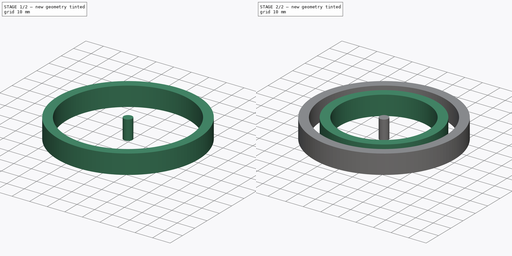
[diagram: build sequence overview — one tinted view per stage of 2, left to right]
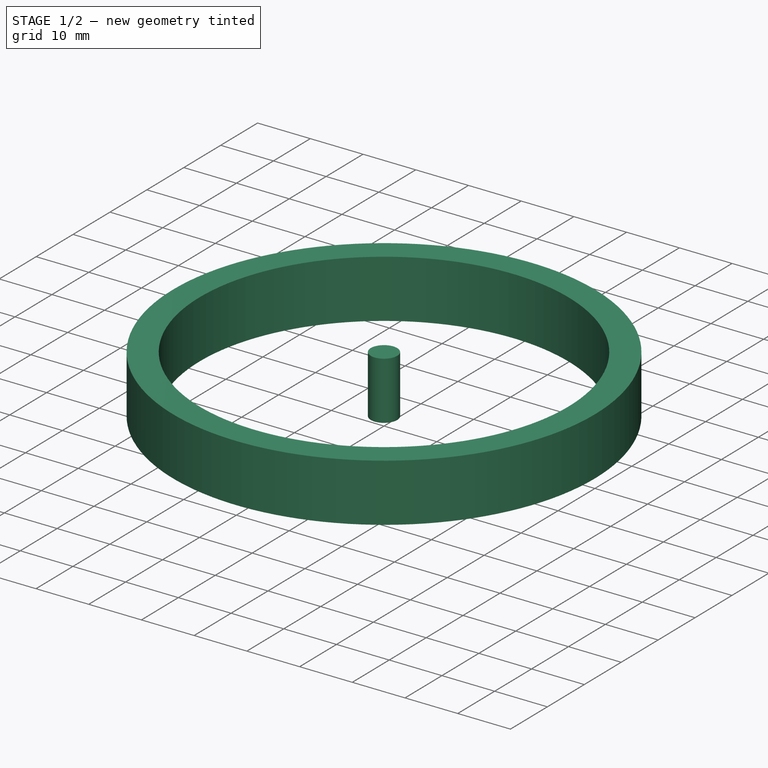
[diagram: stage 1 of 2 — iso view after this stage's code; geometry added in this stage tinted green]
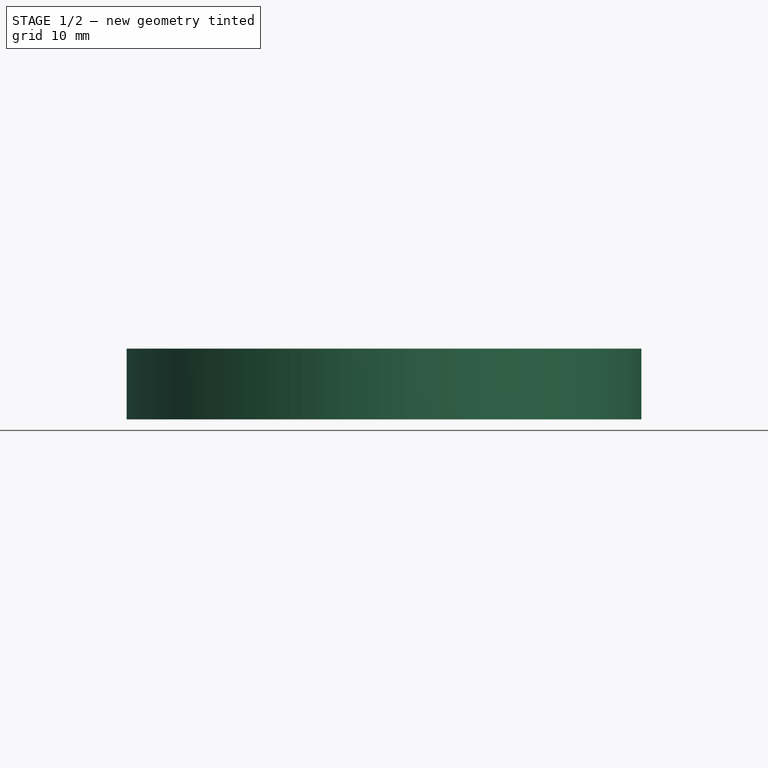
[diagram: stage 1 of 2 — front view after this stage's code; geometry added in this stage tinted green]
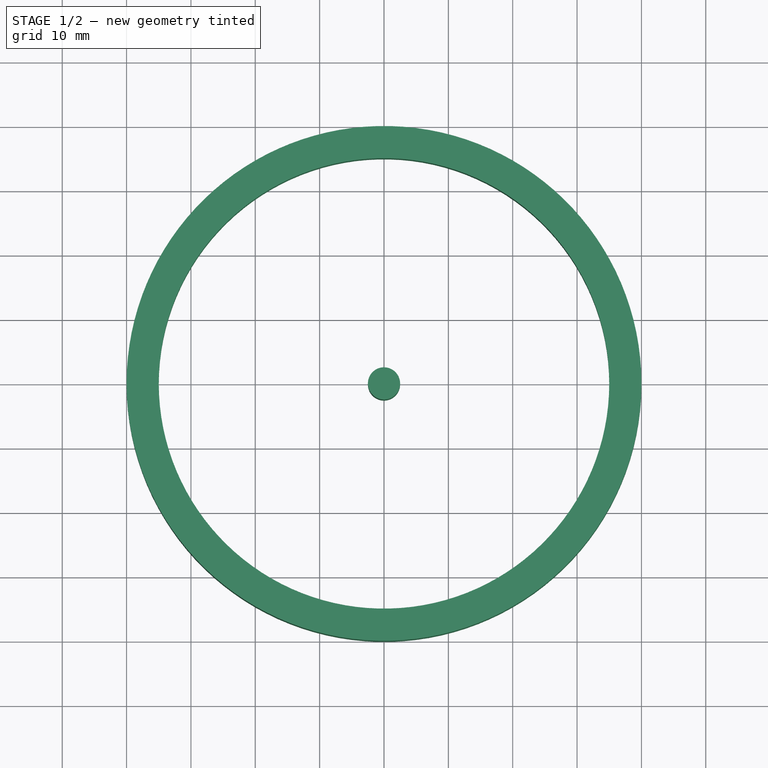
[diagram: stage 1 of 2 — top view after this stage's code; geometry added in this stage tinted green]
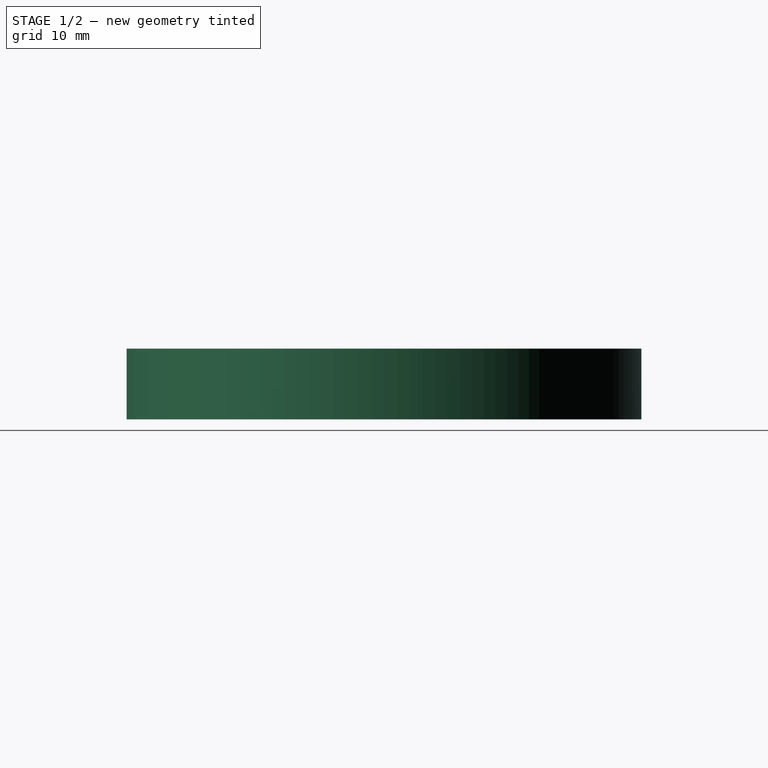
[diagram: stage 1 of 2 — right view after this stage's code; geometry added in this stage tinted green]
FCSTD DOCUMENT  (FreeCAD 0.19R24276 (Git))
Label: Assambly_bearing_50x80x11
License: All rights reserved
LicenseURL: http://en.wikipedia.org/wiki/All_rights_reserved
objects: PartDesign::CoordinateSystem×16, App::Link×14, Sketcher::SketchObject×4, App::DocumentObjectGroup×3, PartDesign::Pad×3, PartDesign::Body×3, App::FeaturePython×1, App::Part×1
note: 29 computed .brp shape members not serialized (recipe doc carries the construction recipe); baked Part::Feature solids carry a one-line shape summary decoded from their .brp

FEATURE [Sketcher::SketchObject] Sketch003
  FullyConstrained = true
  MapMode = 5
  Support = -> [XY_Plane004]
  sketch-geometry (1):
    g0: Circle CenterX=0 CenterY=0 CenterZ=0 NormalX=0 NormalY=0 NormalZ=1 AngleXU=0 Radius=2.5
  constraints (2):
    c: Diameter(g0) = 5
    c: Coincident(g0,g-1)
FEATURE [PartDesign::Pad] Pad002
  Direction = (1,1,1)
  Length = 11
  Length2 = 100
  Profile = -> Sketch003
  Type = 0
FEATURE [PartDesign::CoordinateSystem] LCS_Ring_in
  AttacherType = Attacher::AttachEngine3D
  MapMode = 11
  Placement = pos=(0,0,11) rot=(0,0,1;1.5708rad)
  Support = -> [Pad001]
FEATURE [PartDesign::Body] Body001  label="Body_ring_in"
  Group = -> [Sketch002,Pad001,LCS_Ring_in]
  Origin = -> Origin002
  Tip = -> Pad001
FEATURE [PartDesign::CoordinateSystem] LCS_Roller
  AttacherType = Attacher::AttachEngine3D
  MapMode = 11
  Placement = pos=(0,0,11) rot=(0,0,1;1.5708rad)
  Support = -> [Pad002]
FEATURE [PartDesign::Body] Body002  label="Body_roller"
  Group = -> [Sketch003,Pad002,LCS_Roller]
  Origin = -> Origin003
  Tip = -> Pad002
FEATURE [App::Link] Body_ring_in  label="Body_ring_in001"
  AttachedBy = #LCS_Ring_in
  AttachedTo = Parent Assembly#LCS_Origin
  LinkPlacement = pos=(0,0,-11) rot=(0,0,-1;1.5708rad)
  LinkedObject = -> Body001
  Placement = pos=(0,0,-11) rot=(0,0,-1;1.5708rad)
  SolverId = Placement::ExpressionEngine
  expr: Placement = LCS_Origin.Placement * AttachmentOffset * LCS_Ring_in.Placement ^ -1
FEATURE [PartDesign::CoordinateSystem] LCS_MS_1
  AttacherType = Attacher::AttachEngine3D
  MapMode = 11
  Placement = pos=(0.100138,32.4998,0) rot=(0,0,1;1.5708rad)
  Support = -> [Sketch]
FEATURE [PartDesign::CoordinateSystem] LCS_MS_2
  AttacherType = Attacher::AttachEngine3D
  MapMode = 11
  Placement = pos=(16.25,28.1458,0) rot=(0,0,1;1.5708rad)
  Support = -> [Sketch]
FEATURE [PartDesign::CoordinateSystem] LCS_MS_3
  AttacherType = Attacher::AttachEngine3D
  MapMode = 11
  Placement = pos=(28.1458,16.25,0) rot=(0,0,1;1.5708rad)
  Support = -> [Sketch]
FEATURE [PartDesign::CoordinateSystem] LCS_MS_4
  AttacherType = Attacher::AttachEngine3D
  MapMode = 11
  Placement = pos=(32.5,0,0) rot=(0,0,1;1.5708rad)
  Support = -> [Sketch]
FEATURE [PartDesign::CoordinateSystem] LCS_MS_5
  AttacherType = Attacher::AttachEngine3D
  MapMode = 11
  Placement = pos=(28.1458,-16.25,0) rot=(0,0,1;1.5708rad)
  Support = -> [Sketch]
FEATURE [PartDesign::CoordinateSystem] LCS_MS_6
  AttacherType = Attacher::AttachEngine3D
  MapMode = 11
  Placement = pos=(16.25,-28.1458,0) rot=(0,0,1;1.5708rad)
  Support = -> [Sketch]
FEATURE [PartDesign::CoordinateSystem] LCS_MS_7
  AttacherType = Attacher::AttachEngine3D
  MapMode = 11
  Placement = pos=(-0.104366,-32.4998,0) rot=(0,0,1;1.5708rad)
  Support = -> [Sketch]
FEATURE [PartDesign::CoordinateSystem] LCS_8  label="LCS_MS_8"
  AttacherType = Attacher::AttachEngine3D
  MapMode = 11
  Placement = pos=(-16.25,-28.1458,0) rot=(0,0,1;1.5708rad)
  Support = -> [Sketch]
FEATURE [PartDesign::CoordinateSystem] LCS_MS_9
  AttacherType = Attacher::AttachEngine3D
  MapMode = 11
  Placement = pos=(-28.1458,-16.25,0) rot=(0,0,1;1.5708rad)
  Support = -> [Sketch]
FEATURE [PartDesign::CoordinateSystem] LCS_MS_10
  AttacherType = Attacher::AttachEngine3D
  MapMode = 11
  Placement = pos=(-32.5,-6e-16,0) rot=(0,0,1;1.5708rad)
  Support = -> [Sketch]
FEATURE [PartDesign::CoordinateSystem] LCS_MS_11
  AttacherType = Attacher::AttachEngine3D
  MapMode = 11
  Placement = pos=(-28.1458,16.25,0) rot=(0,0,1;1.5708rad)
  Support = -> [Sketch]
FEATURE [PartDesign::CoordinateSystem] LCS_MS_12
  AttacherType = Attacher::AttachEngine3D
  MapMode = 11
  Placement = pos=(-16.25,28.1458,0) rot=(0,0,1;1.5708rad)
  Support = -> [Sketch]
FEATURE [App::Link] Body_roller001  label="Body_roller002"
  AttachedBy = #LCS_Roller
  AttachedTo = Parent Assembly#LCS_MS_1
  LinkPlacement = pos=(0.100138,32.4998,-11) rot=(0,0,1;0rad)
  LinkedObject = -> Body002
  Placement = pos=(0.100138,32.4998,-11) rot=(0,0,1;0rad)
  SolverId = Placement::ExpressionEngine
  expr: Placement = LCS_MS_1.Placement * AttachmentOffset * LCS_Roller.Placement ^ -1
FEATURE [App::Link] Body_roller002  label="Body_roller003"
  AttachedBy = #LCS_Roller
  AttachedTo = Parent Assembly#LCS_MS_2
  LinkPlacement = pos=(16.25,28.1458,-11) rot=(0,0,1;0rad)
  LinkedObject = -> Body002
  Placement = pos=(16.25,28.1458,-11) rot=(0,0,1;0rad)
  SolverId = Placement::ExpressionEngine
  expr: Placement = LCS_MS_2.Placement * AttachmentOffset * LCS_Roller.Placement ^ -1
FEATURE [App::Link] Body_roller003  label="Body_roller004"
  AttachedBy = #LCS_Roller
  AttachedTo = Parent Assembly#LCS_MS_3
  LinkPlacement = pos=(28.1458,16.25,-11) rot=(0,0,1;0rad)
  LinkedObject = -> Body002
  Placement = pos=(28.1458,16.25,-11) rot=(0,0,1;0rad)
  SolverId = Placement::ExpressionEngine
  expr: Placement = LCS_MS_3.Placement * AttachmentOffset * LCS_Roller.Placement ^ -1
FEATURE [App::Link] Body_roller004  label="Body_roller005"
  AttachedBy = #LCS_Roller
  AttachedTo = Parent Assembly#LCS_MS_4
  LinkPlacement = pos=(32.5,0,-11) rot=(0,0,1;0rad)
  LinkedObject = -> Body002
  Placement = pos=(32.5,0,-11) rot=(0,0,1;0rad)
  SolverId = Placement::ExpressionEngine
  expr: Placement = LCS_MS_4.Placement * AttachmentOffset * LCS_Roller.Placement ^ -1
FEATURE [App::Link] Body_roller005  label="Body_roller006"
  AttachedBy = #LCS_Roller
  AttachedTo = Parent Assembly#LCS_MS_5
  LinkPlacement = pos=(28.1458,-16.25,-11) rot=(0,0,1;0rad)
  LinkedObject = -> Body002
  Placement = pos=(28.1458,-16.25,-11) rot=(0,0,1;0rad)
  SolverId = Placement::ExpressionEngine
  expr: Placement = LCS_MS_5.Placement * AttachmentOffset * LCS_Roller.Placement ^ -1
FEATURE [App::Link] Body_roller006  label="Body_roller007"
  AttachedBy = #LCS_Roller
  AttachedTo = Parent Assembly#LCS_MS_6
  LinkPlacement = pos=(16.25,-28.1458,-11) rot=(0,0,1;0rad)
  LinkedObject = -> Body002
  Placement = pos=(16.25,-28.1458,-11) rot=(0,0,1;0rad)
  SolverId = Placement::ExpressionEngine
  expr: Placement = LCS_MS_6.Placement * AttachmentOffset * LCS_Roller.Placement ^ -1
FEATURE [App::Link] Body_roller007  label="Body_roller008"
  AttachedBy = #LCS_Roller
  AttachedTo = Parent Assembly#LCS_MS_7
  LinkPlacement = pos=(-0.104366,-32.4998,-11) rot=(0,0,1;0rad)
  LinkedObject = -> Body002
  Placement = pos=(-0.104366,-32.4998,-11) rot=(0,0,1;0rad)
  SolverId = Placement::ExpressionEngine
  expr: Placement = LCS_MS_7.Placement * AttachmentOffset * LCS_Roller.Placement ^ -1
FEATURE [App::Link] Body_roller008  label="Body_roller009"
  AttachedBy = #LCS_Roller
  AttachedTo = Parent Assembly#LCS_8
  LinkPlacement = pos=(-16.25,-28.1458,-11) rot=(0,0,1;0rad)
  LinkedObject = -> Body002
  Placement = pos=(-16.25,-28.1458,-11) rot=(0,0,1;0rad)
  SolverId = Placement::ExpressionEngine
  expr: Placement = LCS_8.Placement * AttachmentOffset * LCS_Roller.Placement ^ -1
FEATURE [App::Link] Body_roller009  label="Body_roller010"
  AttachedBy = #LCS_Roller
  AttachedTo = Parent Assembly#LCS_MS_9
  LinkPlacement = pos=(-28.1458,-16.25,-11) rot=(0,0,1;0rad)
  LinkedObject = -> Body002
  Placement = pos=(-28.1458,-16.25,-11) rot=(0,0,1;0rad)
  SolverId = Placement::ExpressionEngine
  expr: Placement = LCS_MS_9.Placement * AttachmentOffset * LCS_Roller.Placement ^ -1
FEATURE [App::Link] Body_roller010  label="Body_roller011"
  AttachedBy = #LCS_Roller
  AttachedTo = Parent Assembly#LCS_MS_10
  LinkPlacement = pos=(-32.5,-6e-16,-11) rot=(0,0,1;0rad)
  LinkedObject = -> Body002
  Placement = pos=(-32.5,-6e-16,-11) rot=(0,0,1;0rad)
  SolverId = Placement::ExpressionEngine
  expr: Placement = LCS_MS_10.Placement * AttachmentOffset * LCS_Roller.Placement ^ -1
FEATURE [App::Link] Body_roller011  label="Body_roller012"
  AttachedBy = #LCS_Roller
  AttachedTo = Parent Assembly#LCS_MS_11
  LinkPlacement = pos=(-28.1458,16.25,-11) rot=(0,0,1;0rad)
  LinkedObject = -> Body002
  Placement = pos=(-28.1458,16.25,-11) rot=(0,0,1;0rad)
  SolverId = Placement::ExpressionEngine
  expr: Placement = LCS_MS_11.Placement * AttachmentOffset * LCS_Roller.Placement ^ -1
FEATURE [App::Link] Body_roller013  label="Body_roller014"
  AttachedBy = #LCS_Roller
  AttachedTo = Parent Assembly#LCS_MS_12
  LinkPlacement = pos=(-16.25,28.1458,-11) rot=(0,0,1;0rad)
  LinkedObject = -> Body002
  Placement = pos=(-16.25,28.1458,-11) rot=(0,0,1;0rad)
  SolverId = Placement::ExpressionEngine
  expr: Placement = LCS_MS_12.Placement * AttachmentOffset * LCS_Roller.Placement ^ -1
FEATURE [Sketcher::SketchObject] Sketch004
  FullyConstrained = true
  MapMode = 5
  Support = -> [XY_Plane005]
  sketch-geometry (2):
    g0: Circle CenterX=0 CenterY=0 CenterZ=0 NormalX=0 NormalY=0 NormalZ=1 AngleXU=0 Radius=35
    g1: Circle CenterX=0 CenterY=0 CenterZ=0 NormalX=0 NormalY=0 NormalZ=1 AngleXU=0 Radius=40
  constraints (4):
    c: Coincident(g1,g0)
    c: Diameter(g1) = 80
    c: Diameter(g0) = 70
    c: Coincident(g0,g-1)
FEATURE [PartDesign::Pad] Pad003
  Direction = (1,1,1)
  Length = 11
  Length2 = 100
  Profile = -> Sketch004
  Type = 0
FEATURE [PartDesign::CoordinateSystem] LCS_Ring_out
  AttacherType = Attacher::AttachEngine3D
  MapMode = 11
  Placement = pos=(0,0,11) rot=(0,0,1;1.5708rad)
  Support = -> [Pad003]
FEATURE [PartDesign::Body] Body003  label="Body_ring_out"
  Group = -> [Sketch004,Pad003,LCS_Ring_out]
  Origin = -> Origin004
  Tip = -> Pad003
FEATURE [App::DocumentObjectGroup] Parts
  Group = -> [Body003,Body002]
FEATURE [App::Link] Body_ring_out  label="Body_ring_out001"
  AttachedBy = #LCS_Ring_out
  AttachedTo = Parent Assembly#LCS_Origin
  LinkPlacement = pos=(0,0,-11) rot=(0,0,-1;1.5708rad)
  LinkedObject = -> Body003
  Placement = pos=(0,0,-11) rot=(0,0,-1;1.5708rad)
  SolverId = Placement::ExpressionEngine
  expr: Placement = LCS_Origin.Placement * AttachmentOffset * LCS_Ring_out.Placement ^ -1
FEATURE [App::Part] Assembly
  AssemblyType = Part::Link
  Group = -> [LCS_Origin,Variables,Constraints,Configurations,Sketch,Body_ring_in,LCS_MS_1,LCS_MS_2,LCS_MS_3,LCS_MS_4,LCS_MS_5,LCS_MS_6,LCS_MS_7,LCS_8,LCS_MS_9,LCS_MS_10,LCS_MS_11,LCS_MS_12,Body_roller001,Body_roller002,Body_roller003,Body_roller004,Body_roller005,Body_roller006,Body_roller007,Body_roller008,Body_roller009,Body_roller010,Body_roller011,Body_roller013,Body_ring_out]
  Origin = -> Origin
  Type = Assembly
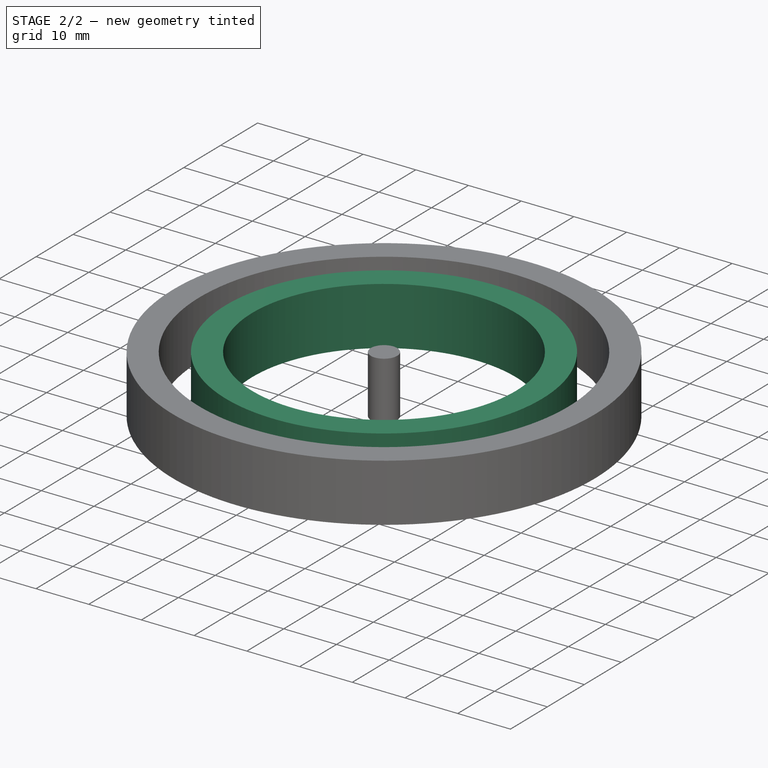
[diagram: stage 2 of 2 — iso view after this stage's code; geometry added in this stage tinted green]
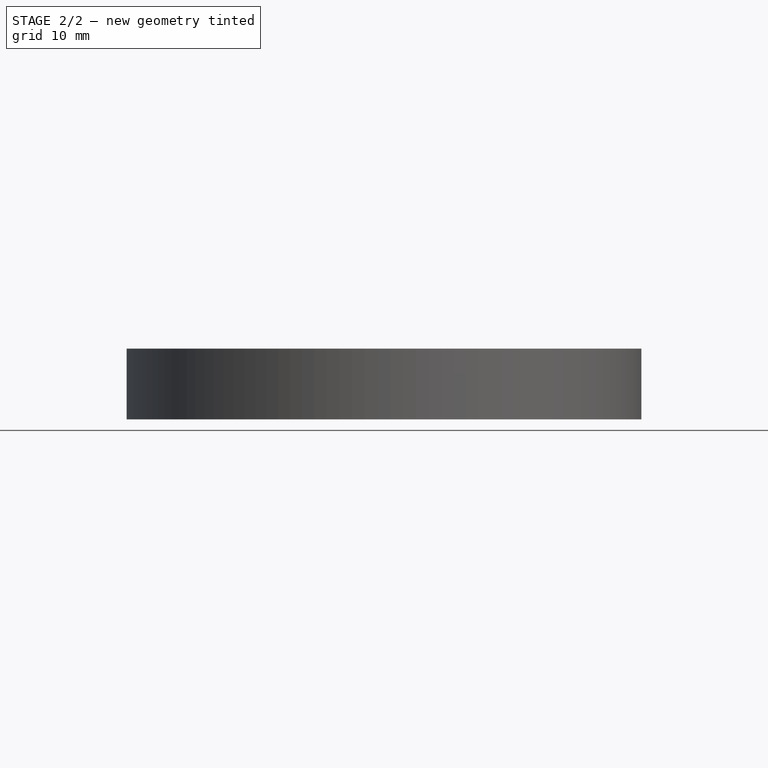
[diagram: stage 2 of 2 — front view after this stage's code; geometry added in this stage tinted green]
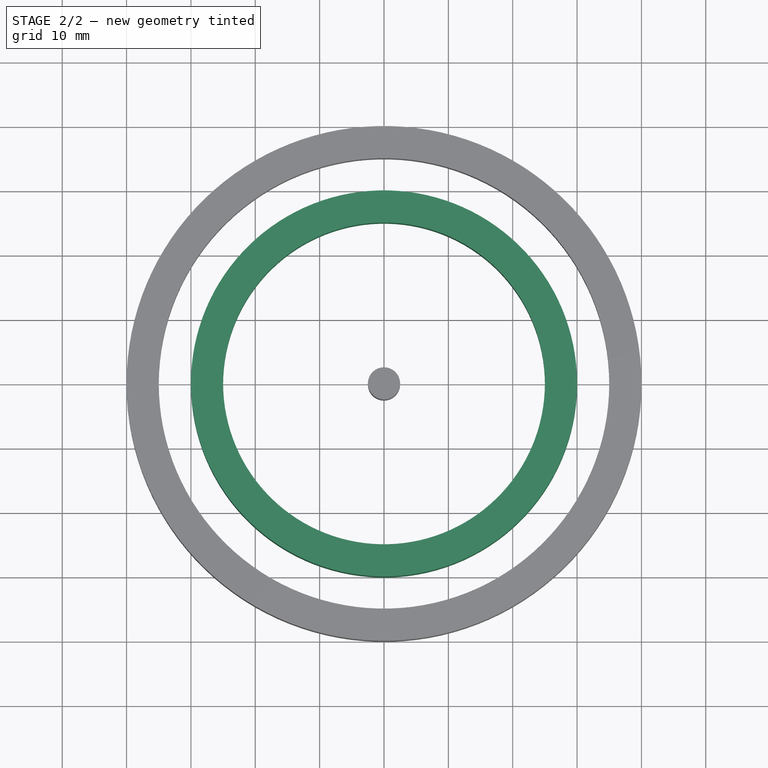
[diagram: stage 2 of 2 — top view after this stage's code; geometry added in this stage tinted green]
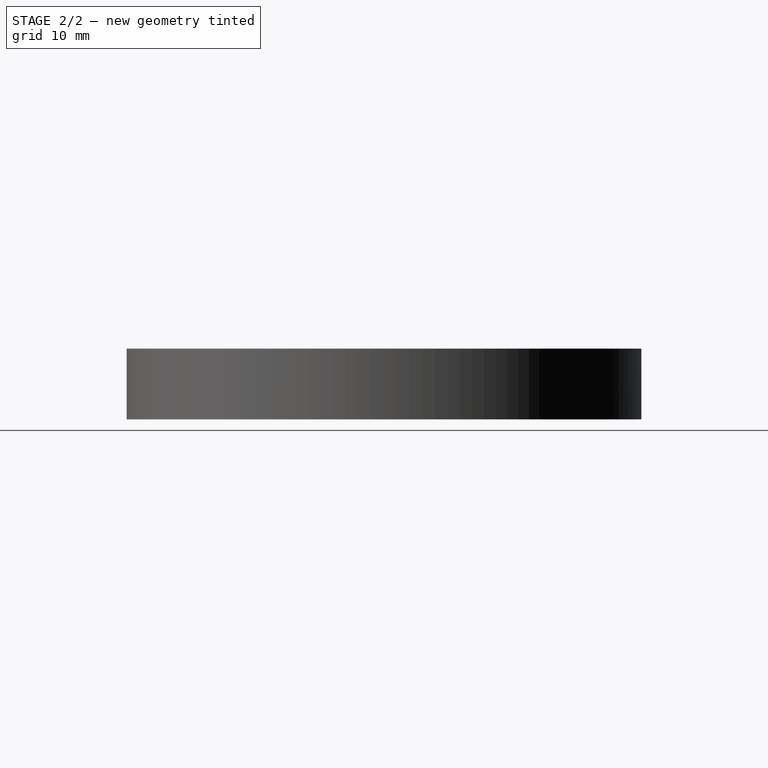
[diagram: stage 2 of 2 — right view after this stage's code; geometry added in this stage tinted green]
FEATURE [PartDesign::CoordinateSystem] LCS_Origin
  AttacherType = Attacher::AttachEngine3D
  MapMode = 2
  Support = -> [X_Axis]
FEATURE [App::FeaturePython] Variables  # WARN: FeaturePython — macro-defined, semantics opaque (R4)
  Type = App::PropertyContainer
FEATURE [App::DocumentObjectGroup] Configurations
FEATURE [Sketcher::SketchObject] Sketch
  FullyConstrained = false
  MapMode = 5
  Support = -> [XY_Plane]
  sketch-geometry (29):
    g0: Circle CenterX=0 CenterY=0 CenterZ=0 NormalX=0 NormalY=0 NormalZ=1 AngleXU=0 Radius=30
    g1: Circle CenterX=0 CenterY=0 CenterZ=0 NormalX=0 NormalY=0 NormalZ=1 AngleXU=0 Radius=35
    g2: Circle CenterX=0 CenterY=0 CenterZ=0 NormalX=0 NormalY=0 NormalZ=1 AngleXU=0 Radius=25
    g3: Circle CenterX=0 CenterY=0 CenterZ=0 NormalX=0 NormalY=0 NormalZ=1 AngleXU=0 Radius=40
    g4: Circle CenterX=0 CenterY=0 CenterZ=0 NormalX=0 NormalY=0 NormalZ=1 AngleXU=0 Radius=32.5
    g5: LineSegment StartX=0 StartY=0 StartZ=0 EndX=32.5 EndY=0 EndZ=0
    g6: LineSegment StartX=0 StartY=0 StartZ=0 EndX=28.1458 EndY=16.25 EndZ=0
    g7: Circle CenterX=28.1458 CenterY=16.25 CenterZ=0 NormalX=0 NormalY=0 NormalZ=1 AngleXU=0 Radius=2.5
    g8: Circle CenterX=32.5 CenterY=0 CenterZ=0 NormalX=0 NormalY=0 NormalZ=1 AngleXU=0 Radius=2.5
    g9: LineSegment StartX=0 StartY=0 StartZ=0 EndX=16.25 EndY=28.1458 EndZ=0
    g10: Circle CenterX=16.25 CenterY=28.1458 CenterZ=0 NormalX=0 NormalY=0 NormalZ=1 AngleXU=0 Radius=2.5
    g11: LineSegment StartX=0 StartY=0 StartZ=0 EndX=0.100138 EndY=32.4998 EndZ=0
    g12: LineSegment StartX=0 StartY=0 StartZ=0 EndX=-16.25 EndY=28.1458 EndZ=0
    g13: LineSegment StartX=0 StartY=0 StartZ=0 EndX=-28.1458 EndY=16.25 EndZ=0
    g14: LineSegment StartX=0 StartY=0 StartZ=0 EndX=-32.5 EndY=-6e-16 EndZ=0
    g15: Circle CenterX=0.100138 CenterY=32.4998 CenterZ=0 NormalX=0 NormalY=0 NormalZ=1 AngleXU=0 Radius=2.5
    g16: Circle CenterX=-28.1458 CenterY=16.25 CenterZ=0 NormalX=0 NormalY=0 NormalZ=1 AngleXU=0 Radius=2.5
    g17: Circle CenterX=-32.5 CenterY=-6e-16 CenterZ=0 NormalX=0 NormalY=0 NormalZ=1 AngleXU=0 Radius=2.5
    g18: Circle CenterX=-16.25 CenterY=28.1458 CenterZ=0 NormalX=0 NormalY=0 NormalZ=1 AngleXU=0 Radius=2.5
    g19: LineSegment StartX=0 StartY=0 StartZ=0 EndX=-28.1458 EndY=-16.25 EndZ=0
    g20: LineSegment StartX=0 StartY=0 StartZ=0 EndX=-16.25 EndY=-28.1458 EndZ=0
    g21: LineSegment StartX=-0.104366 StartY=-3.99902e-07 StartZ=0 EndX=-0.104366 EndY=-32.4998 EndZ=0
    g22: LineSegment StartX=0 StartY=0 StartZ=0 EndX=16.25 EndY=-28.1458 EndZ=0
    g23: LineSegment StartX=0 StartY=0 StartZ=0 EndX=28.1458 EndY=-16.25 EndZ=0
    g24: Circle CenterX=-28.1458 CenterY=-16.25 CenterZ=0 NormalX=0 NormalY=0 NormalZ=1 AngleXU=0 Radius=2.5
    g25: Circle CenterX=-16.25 CenterY=-28.1458 CenterZ=0 NormalX=0 NormalY=0 NormalZ=1 AngleXU=0 Radius=2.5
    g26: Circle CenterX=-0.104366 CenterY=-32.4998 CenterZ=0 NormalX=0 NormalY=0 NormalZ=1 AngleXU=0 Radius=2.5
    g27: Circle CenterX=16.25 CenterY=-28.1458 CenterZ=0 NormalX=0 NormalY=0 NormalZ=1 AngleXU=0 Radius=2.5
    g28: Circle CenterX=28.1458 CenterY=-16.25 CenterZ=0 NormalX=0 NormalY=0 NormalZ=1 AngleXU=0 Radius=2.5
  constraints (68):
    c: Coincident(g0,g-1)
    c: Coincident(g1,g0)
    c: Coincident(g2,g0)
    c: Coincident(g3,g0)
    c: Diameter(g2) = 50
    c: Diameter(g0) = 60
    c: Diameter(g1) = 70
    c: Diameter(g3) = 80
    c: Coincident(g4,g0)
    c: Diameter(g4) = 65
    c: Coincident(g5,g0)
    c: Coincident(g6,g0)
    c: Coincident(g7,g6)
    c: Diameter(g7) = 5
    c: Coincident(g8,g5)
    c: Coincident(g9,g0)
    c: Coincident(g10,g9)
    c: Angle(g5,g6) = 0.523599
    c: Angle(g5,g9) = 1.0472
    c: Coincident(g11,g0)
    c: Coincident(g12,g0)
    c: Coincident(g13,g0)
    c: Coincident(g14,g0)
    c: Angle(g-1,g12) = 2.0944
    c: Angle(g-1,g13) = 2.61799
    c: Angle(g14,g-1) = 3.14159
    c: PointOnObject(g11,g4)
    c: Coincident(g15,g11)
    c: Coincident(g16,g13)
    c: Coincident(g17,g14)
    c: Coincident(g18,g12)
    c: Coincident(g19,g0)
    c: Coincident(g20,g0)
    c: Coincident(g22,g0)
    c: Coincident(g23,g0)
    c: Angle(g23,g-1) = 0.523599
    c: Horizontal(g5)
    c: PointOnObject(g23,g4)
    c: PointOnObject(g22,g4)
    c: PointOnObject(g21,g4)
    c: PointOnObject(g20,g4)
    c: PointOnObject(g19,g4)
    c: Angle(g22,g5) = 1.0472
    c: Perpendicular(g5,g21)
    c: Angle(g20,g21) = 0.523599
    c: Angle(g14,g19) = 0.523599
    c: Coincident(g24,g19)
    c: Coincident(g25,g20)
    c: Coincident(g26,g21)
    c: Coincident(g27,g22)
    c: Coincident(g28,g23)
    c: Diameter(g28) = 5
    c: Equal(g24,g25)
    c: Equal(g25,g26)
    c: Equal(g26,g27)
    c: Equal(g27,g28)
    c: Equal(g11,g12)
    c: Equal(g12,g13)
    c: Equal(g13,g14)
    c: Equal(g9,g6)
    c: Equal(g6,g5)
    c: Equal(g5,g11)
    c: Equal(g8,g7)
    c: Equal(g7,g10)
    c: Equal(g10,g15)
    c: Equal(g17,g16)
    c: Equal(g16,g18)
    c: Equal(g18,g15)
FEATURE [App::DocumentObjectGroup] Constraints
  Group = -> [Sketch]
FEATURE [Sketcher::SketchObject] Sketch002
  FullyConstrained = true
  MapMode = 5
  Support = -> [XY_Plane003]
  sketch-geometry (2):
    g0: Circle CenterX=0 CenterY=0 CenterZ=0 NormalX=0 NormalY=0 NormalZ=1 AngleXU=0 Radius=30
    g1: Circle CenterX=0 CenterY=0 CenterZ=0 NormalX=0 NormalY=0 NormalZ=1 AngleXU=0 Radius=25
  constraints (4):
    c: Coincident(g1,g0)
    c: Diameter(g1) = 50
    c: Diameter(g0) = 60
    c: Coincident(g0,g-1)
FEATURE [PartDesign::Pad] Pad001
  Direction = (1,1,1)
  Length = 11
  Length2 = 100
  Profile = -> Sketch002
  Type = 0
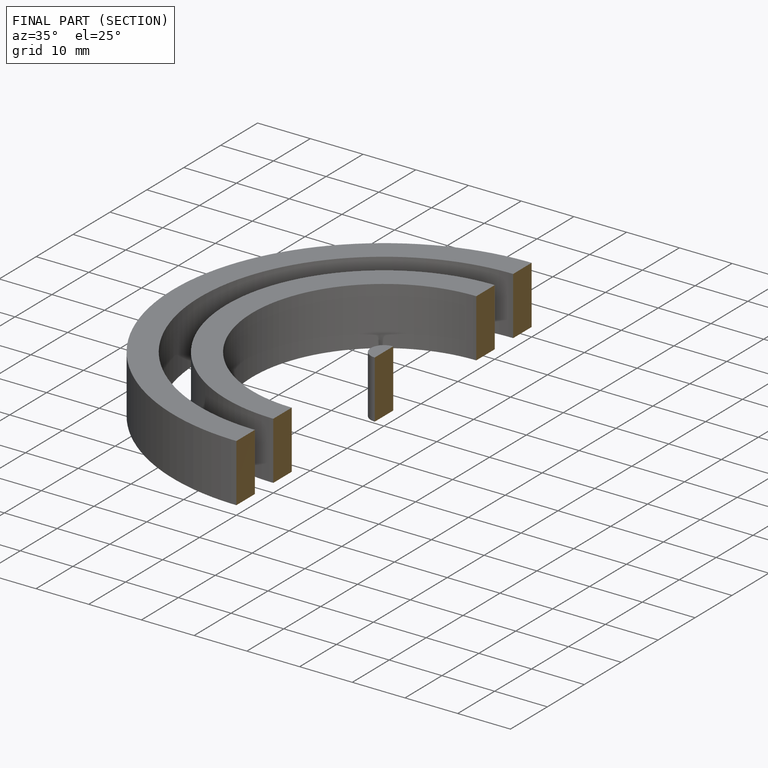
[diagram: finished part — half-section view (interior)]
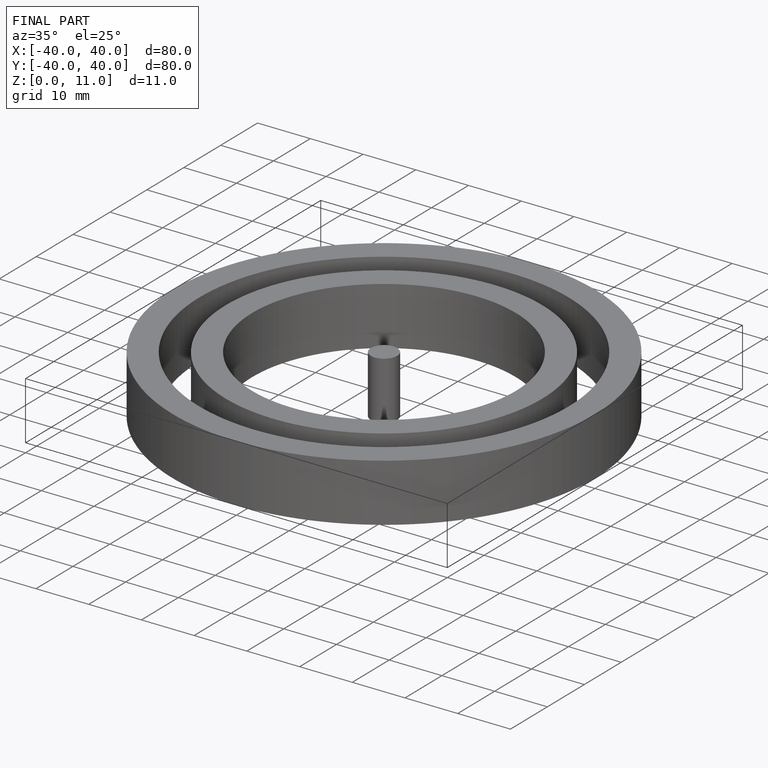
[diagram: finished part — iso view with bounding-box wireframe]
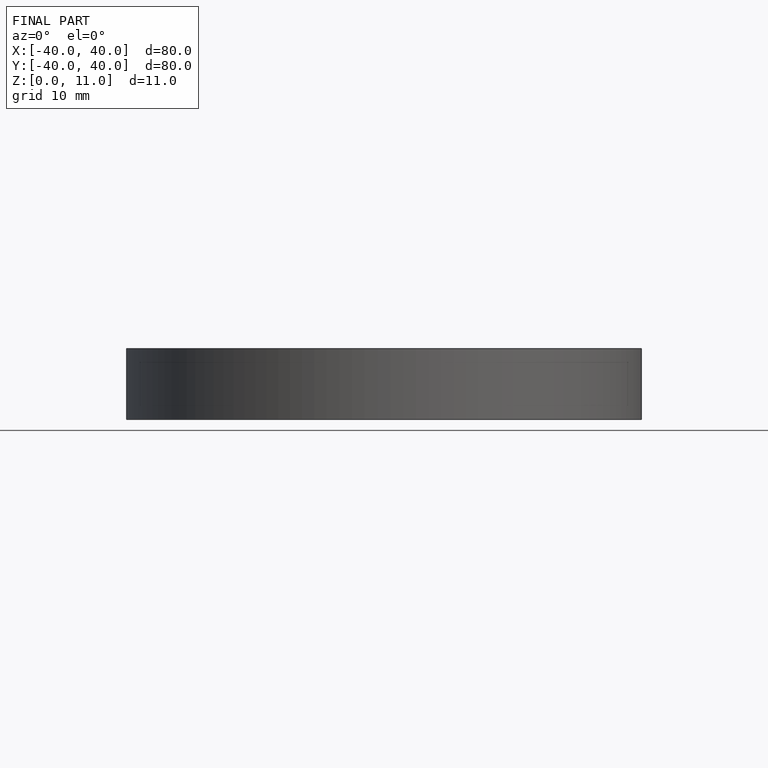
[diagram: finished part — front view with bounding-box wireframe]
